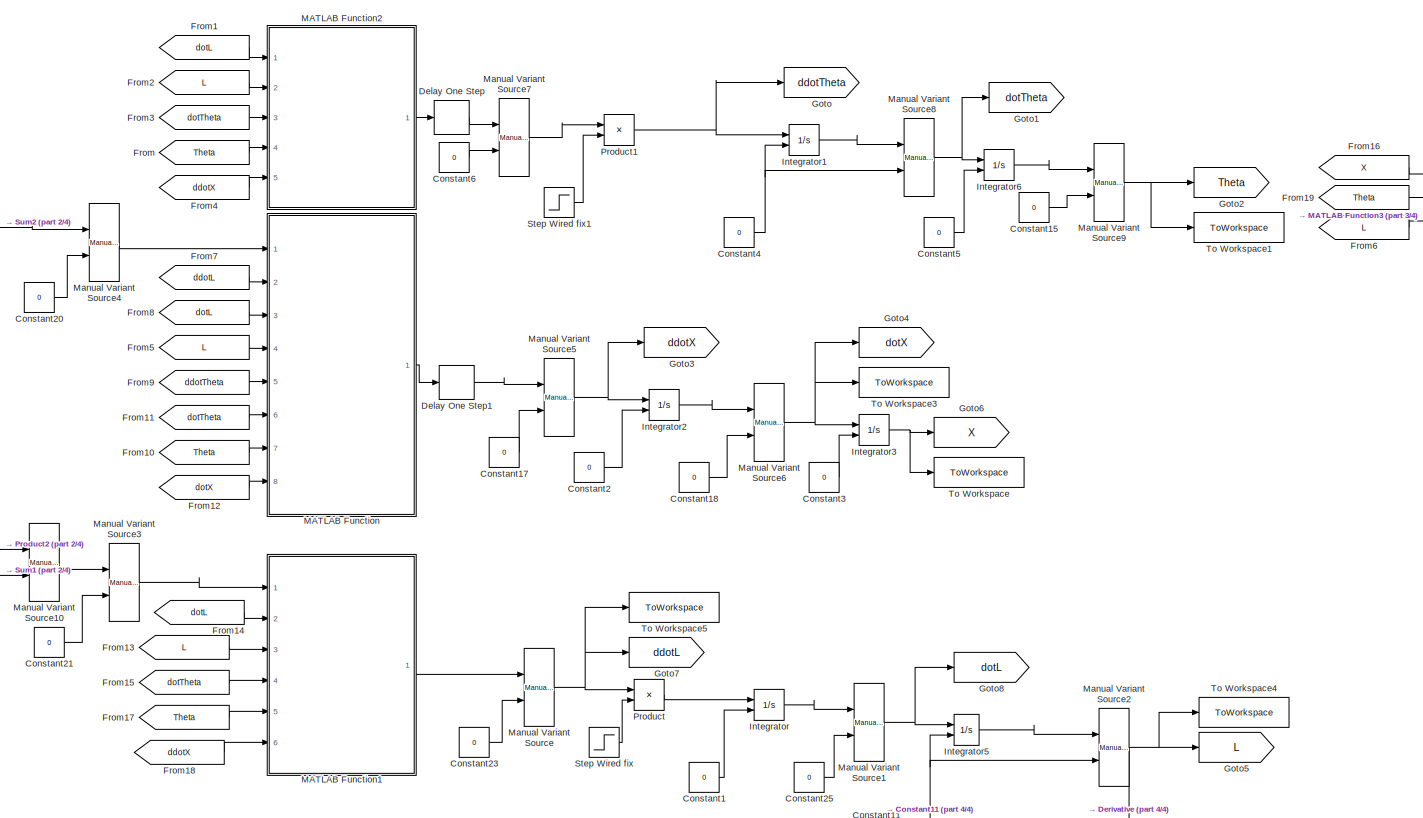
[diagram: root canvas - part 1/4, center side, full height]
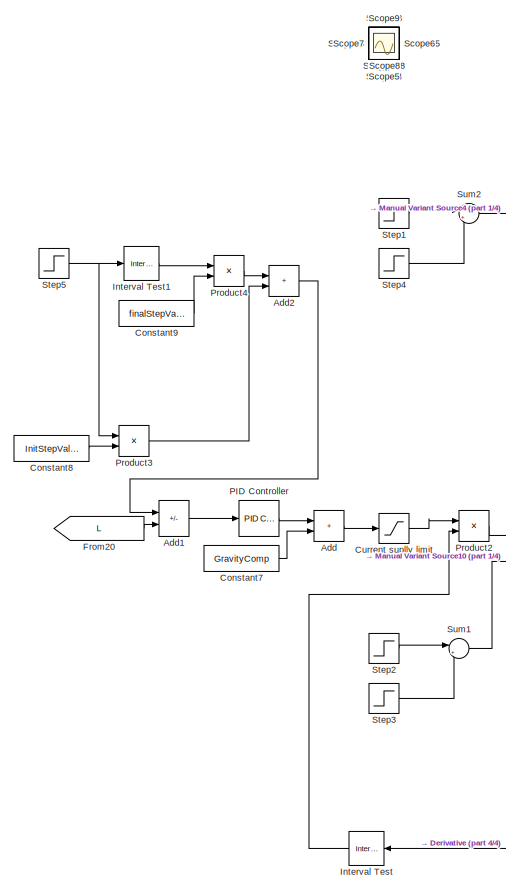
[diagram: root canvas - part 2/4, left side, full height]
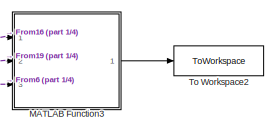
[diagram: root canvas - part 3/4, top right region]
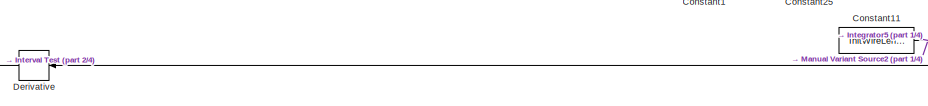
[diagram: root canvas - part 4/4, bottom center region]
MODEL slx_53948951d9bb
KIND model
CONFIG AbsTol = auto
CONFIG EnableMultiTasking = off
CONFIG FixedStep = auto
CONFIG MaxStep = 0.00005
CONFIG MinStep = auto
CONFIG RelTol = 1e-3
CONFIG SampleTimeConstraint = Unconstrained
CONFIG SolverName = VariableStepAuto
CONFIG StartTime = 0.0
CONFIG StopTime = 10
BLOCK [Sum] Add
  IconShape = rectangular
  Ports = [2, 1]
BLOCK [Sum] Add1
  IconShape = rectangular
  Inputs = +-
  Ports = [2, 1]
BLOCK [Sum] Add2
  IconShape = rectangular
  Ports = [2, 1]
BLOCK [Constant] Constant1
  Value = 0
BLOCK [Constant] Constant11
  Value = InitWireLength
BLOCK [Constant] Constant15
  Value = 0
BLOCK [Constant] Constant17
  Value = 0
BLOCK [Constant] Constant18
  Value = 0
BLOCK [Constant] Constant2
  Value = 0
BLOCK [Constant] Constant20
  Value = 0
BLOCK [Constant] Constant21
  Value = 0
BLOCK [Constant] Constant23
  Value = 0
BLOCK [Constant] Constant25
  Value = 0
BLOCK [Constant] Constant3
  Value = 0
BLOCK [Constant] Constant4
  Value = 0
BLOCK [Constant] Constant5
  Value = 0
BLOCK [Constant] Constant6
  Value = 0
BLOCK [Constant] Constant7
  Value = GravityComp
BLOCK [Constant] Constant8
  Value = InitStepValue
BLOCK [Constant] Constant9
  Value = finalStepValue
BLOCK [Saturate] Current suplly limit
  LowerLimit = -10
  UpperLimit = 10
BLOCK [Delay] Delay One Step
  DelayLength = 1
  InputPortMap = u0
  Ports = [1, 1]
BLOCK [Delay] Delay One Step1
  DelayLength = 1
  InputPortMap = u0
  Ports = [1, 1]
BLOCK [Derivative] Derivative
  NameLocation = top
BLOCK [From] From
  GotoTag = Theta
BLOCK [From] From1
  GotoTag = dotL
BLOCK [From] From10
  GotoTag = Theta
BLOCK [From] From11
  GotoTag = dotTheta
BLOCK [From] From12
  GotoTag = dotX
BLOCK [From] From13
  GotoTag = L
BLOCK [From] From14
  GotoTag = dotL
BLOCK [From] From15
  GotoTag = dotTheta
BLOCK [From] From16
  GotoTag = X
BLOCK [From] From17
  GotoTag = Theta
BLOCK [From] From18
  GotoTag = ddotX
BLOCK [From] From19
  GotoTag = Theta
BLOCK [From] From2
  GotoTag = L
BLOCK [From] From20
  GotoTag = L
BLOCK [From] From3
  GotoTag = dotTheta
BLOCK [From] From4
  GotoTag = ddotX
BLOCK [From] From5
  GotoTag = L
BLOCK [From] From6
  GotoTag = L
BLOCK [From] From7
  GotoTag = ddotL
BLOCK [From] From8
  GotoTag = dotL
BLOCK [From] From9
  GotoTag = ddotTheta
BLOCK [Goto] Goto
  GotoTag = ddotTheta
BLOCK [Goto] Goto1
  GotoTag = dotTheta
BLOCK [Goto] Goto2
  GotoTag = Theta
BLOCK [Goto] Goto3
  GotoTag = ddotX
BLOCK [Goto] Goto4
  GotoTag = dotX
BLOCK [Goto] Goto5
  GotoTag = L
BLOCK [Goto] Goto6
  GotoTag = X
BLOCK [Goto] Goto7
  GotoTag = ddotL
BLOCK [Goto] Goto8
  GotoTag = dotL
BLOCK [Integrator] Integrator
  InitialConditionSource = external
  Ports = [2, 1]
BLOCK [Integrator] Integrator1
  InitialConditionSource = external
  Ports = [2, 1]
BLOCK [Integrator] Integrator2
  InitialConditionSource = external
  Ports = [2, 1]
BLOCK [Integrator] Integrator3
  InitialConditionSource = external
  Ports = [2, 1]
BLOCK [Integrator] Integrator5
  InitialConditionSource = external
  Ports = [2, 1]
BLOCK [Integrator] Integrator6
  InitialConditionSource = external
  Ports = [2, 1]
BLOCK [Reference] Interval Test  REF=simulink/Logic and Bit
Operations/Interval Test
  NameLocation = top
  Ports = [1, 1]
  SourceBlock = simulink/Logic and Bit\nOperations/Interval Test
  SourceProductBaseCode = SL
  SourceType = Interval Test
BLOCK [Reference] Interval Test1  REF=simulink/Logic and Bit
Operations/Interval Test
  Ports = [1, 1]
  SourceBlock = simulink/Logic and Bit\nOperations/Interval Test
  SourceProductBaseCode = SL
  SourceType = Interval Test
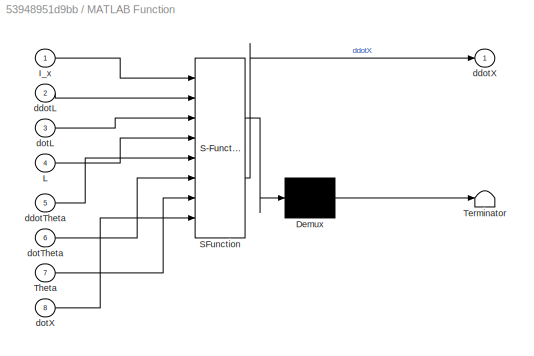
BLOCK [SubSystem] MATLAB Function
  ErrorFcn = Stateflow.Translate.translate
  PermitHierarchicalResolution = ExplicitOnly
  Ports = [8, 1]
  RequestExecContextInheritance = off
  SFBlockType = MATLAB Function
  TreatAsAtomicUnit = on
BLOCK [Demux] MATLAB Function/ Demux 
  Outputs = 1
  Ports = [1, 1]
BLOCK [S-Function] MATLAB Function/ SFunction 
  EnableBusSupport = on
  FunctionName = sf_sfun
  Parameters = B_x,J_x,cFrictionX,k_ex,m_l,m_t,r_x,sFrictionX
  PortCounts = [8 2]
  Ports = [8, 2]
  SFcnIsStateOwnerBlock = off
  SFunctionDeploymentMode = off
  Tag = Stateflow S-Function 2
BLOCK [Terminator] MATLAB Function/ Terminator 
BLOCK [Inport] MATLAB Function/I_x
BLOCK [Inport] MATLAB Function/L
  Port = 4
BLOCK [Inport] MATLAB Function/Theta
  Port = 7
BLOCK [Inport] MATLAB Function/ddotL
  Port = 2
BLOCK [Inport] MATLAB Function/ddotTheta
  Port = 5
BLOCK [Outport] MATLAB Function/ddotX
BLOCK [Inport] MATLAB Function/dotL
  Port = 3
BLOCK [Inport] MATLAB Function/dotTheta
  Port = 6
BLOCK [Inport] MATLAB Function/dotX
  Port = 8
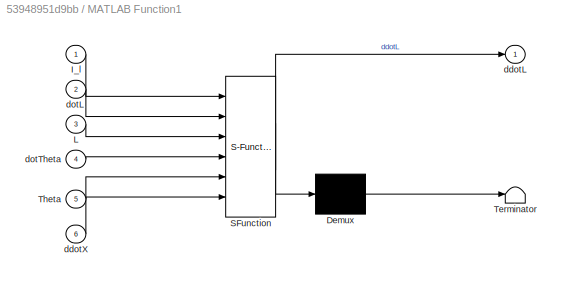
BLOCK [SubSystem] MATLAB Function1
  ErrorFcn = Stateflow.Translate.translate
  PermitHierarchicalResolution = ExplicitOnly
  Ports = [6, 1]
  RequestExecContextInheritance = off
  SFBlockType = MATLAB Function
  TreatAsAtomicUnit = on
BLOCK [Demux] MATLAB Function1/ Demux 
  Outputs = 1
  Ports = [1, 1]
BLOCK [S-Function] MATLAB Function1/ SFunction 
  EnableBusSupport = on
  FunctionName = sf_sfun
  Parameters = B_l,J_l,cFrictionL,g,k_el,m_l,r_l,sFrictionL
  PortCounts = [6 2]
  Ports = [6, 2]
  SFcnIsStateOwnerBlock = off
  SFunctionDeploymentMode = off
  Tag = Stateflow S-Function 1
BLOCK [Terminator] MATLAB Function1/ Terminator 
BLOCK [Inport] MATLAB Function1/I_l
BLOCK [Inport] MATLAB Function1/L
  Port = 3
BLOCK [Inport] MATLAB Function1/Theta
  Port = 5
BLOCK [Outport] MATLAB Function1/ddotL
BLOCK [Inport] MATLAB Function1/ddotX
  Port = 6
BLOCK [Inport] MATLAB Function1/dotL
  Port = 2
BLOCK [Inport] MATLAB Function1/dotTheta
  Port = 4
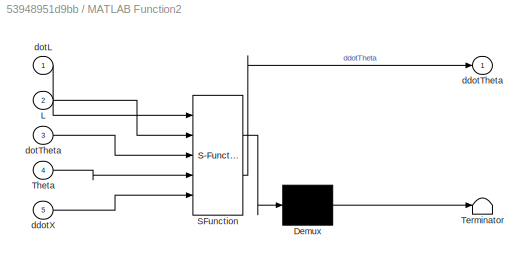
BLOCK [SubSystem] MATLAB Function2
  ErrorFcn = Stateflow.Translate.translate
  PermitHierarchicalResolution = ExplicitOnly
  Ports = [5, 1]
  RequestExecContextInheritance = off
  SFBlockType = MATLAB Function
  TreatAsAtomicUnit = on
BLOCK [Demux] MATLAB Function2/ Demux 
  Outputs = 1
  Ports = [1, 1]
BLOCK [S-Function] MATLAB Function2/ SFunction 
  EnableBusSupport = on
  FunctionName = sf_sfun
  Parameters = g
  PortCounts = [5 2]
  Ports = [5, 2]
  SFcnIsStateOwnerBlock = off
  SFunctionDeploymentMode = off
  Tag = Stateflow S-Function 3
BLOCK [Terminator] MATLAB Function2/ Terminator 
BLOCK [Inport] MATLAB Function2/L
  Port = 2
BLOCK [Inport] MATLAB Function2/Theta
  Port = 4
BLOCK [Outport] MATLAB Function2/ddotTheta
BLOCK [Inport] MATLAB Function2/ddotX
  Port = 5
BLOCK [Inport] MATLAB Function2/dotL
BLOCK [Inport] MATLAB Function2/dotTheta
  Port = 3
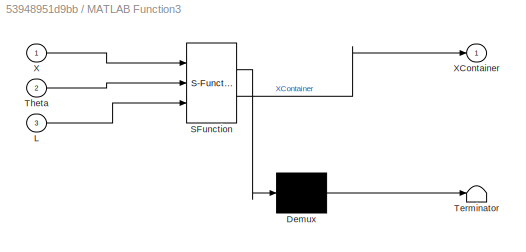
BLOCK [SubSystem] MATLAB Function3
  ErrorFcn = Stateflow.Translate.translate
  PermitHierarchicalResolution = ExplicitOnly
  Ports = [3, 1]
  RequestExecContextInheritance = off
  SFBlockType = MATLAB Function
  TreatAsAtomicUnit = on
BLOCK [Demux] MATLAB Function3/ Demux 
  Outputs = 1
  Ports = [1, 1]
BLOCK [S-Function] MATLAB Function3/ SFunction 
  EnableBusSupport = on
  FunctionName = sf_sfun
  PortCounts = [3 2]
  Ports = [3, 2]
  SFcnIsStateOwnerBlock = off
  SFunctionDeploymentMode = off
  Tag = Stateflow S-Function 4
BLOCK [Terminator] MATLAB Function3/ Terminator 
BLOCK [Inport] MATLAB Function3/L
  Port = 3
BLOCK [Inport] MATLAB Function3/Theta
  Port = 2
BLOCK [Inport] MATLAB Function3/X
BLOCK [Outport] MATLAB Function3/XContainer
BLOCK [Reference] Manual Variant Source  REF=simulink/Signal
Routing/Manual
Variant Source
  Ports = [2, 1]
  SourceBlock = simulink/Signal\nRouting/Manual\nVariant Source
  SourceProductBaseCode = SL
  SourceType = ManualVariantSource
BLOCK [Reference] Manual Variant Source1  REF=simulink/Signal
Routing/Manual
Variant Source
  Ports = [2, 1]
  SourceBlock = simulink/Signal\nRouting/Manual\nVariant Source
  SourceProductBaseCode = SL
  SourceType = ManualVariantSource
BLOCK [Reference] Manual Variant Source10  REF=simulink/Signal
Routing/Manual
Variant Source
  NameLocation = right
  Ports = [2, 1]
  SourceBlock = simulink/Signal\nRouting/Manual\nVariant Source
  SourceProductBaseCode = SL
  SourceType = ManualVariantSource
BLOCK [Reference] Manual Variant Source2  REF=simulink/Signal
Routing/Manual
Variant Source
  Ports = [2, 1]
  SourceBlock = simulink/Signal\nRouting/Manual\nVariant Source
  SourceProductBaseCode = SL
  SourceType = ManualVariantSource
BLOCK [Reference] Manual Variant Source3  REF=simulink/Signal
Routing/Manual
Variant Source
  Ports = [2, 1]
  SourceBlock = simulink/Signal\nRouting/Manual\nVariant Source
  SourceProductBaseCode = SL
  SourceType = ManualVariantSource
BLOCK [Reference] Manual Variant Source4  REF=simulink/Signal
Routing/Manual
Variant Source
  Ports = [2, 1]
  SourceBlock = simulink/Signal\nRouting/Manual\nVariant Source
  SourceProductBaseCode = SL
  SourceType = ManualVariantSource
BLOCK [Reference] Manual Variant Source5  REF=simulink/Signal
Routing/Manual
Variant Source
  Ports = [2, 1]
  SourceBlock = simulink/Signal\nRouting/Manual\nVariant Source
  SourceProductBaseCode = SL
  SourceType = ManualVariantSource
BLOCK [Reference] Manual Variant Source6  REF=simulink/Signal
Routing/Manual
Variant Source
  Ports = [2, 1]
  SourceBlock = simulink/Signal\nRouting/Manual\nVariant Source
  SourceProductBaseCode = SL
  SourceType = ManualVariantSource
BLOCK [Reference] Manual Variant Source7  REF=simulink/Signal
Routing/Manual
Variant Source
  Ports = [2, 1]
  SourceBlock = simulink/Signal\nRouting/Manual\nVariant Source
  SourceProductBaseCode = SL
  SourceType = ManualVariantSource
BLOCK [Reference] Manual Variant Source8  REF=simulink/Signal
Routing/Manual
Variant Source
  Ports = [2, 1]
  SourceBlock = simulink/Signal\nRouting/Manual\nVariant Source
  SourceProductBaseCode = SL
  SourceType = ManualVariantSource
BLOCK [Reference] Manual Variant Source9  REF=simulink/Signal
Routing/Manual
Variant Source
  Ports = [2, 1]
  SourceBlock = simulink/Signal\nRouting/Manual\nVariant Source
  SourceProductBaseCode = SL
  SourceType = ManualVariantSource
BLOCK [Reference] PID Controller  REF=slpidlib/PID Controller
  Ports = [1, 1]
  SourceBlock = slpidlib/PID Controller
  SourceProductBaseCode = SL
  SourceType = PID 1dof
BLOCK [Product] Product
  Ports = [2, 1]
BLOCK [Product] Product1
  Ports = [2, 1]
BLOCK [Product] Product2
  Ports = [2, 1]
BLOCK [Product] Product3
  Ports = [2, 1]
BLOCK [Product] Product4
  Ports = [2, 1]
BLOCK [Scope] Scope
  Floating = off
  IOType = viewer
  NumInputPorts = 1
  Ports = []
  ScopeSpecificationString = Simulink.scopes.TimeScopeBlockCfg('CurrentConfiguration', extmgr.ConfigurationSet(extmgr.Configuration('Core','General UI',true),extmgr.Configuration('Core','Source UI',true),extmgr.Configuration('Sources','WiredSimulink',true),extmgr.Configuration('Visuals','Time Domain',true,'SerializedDisplays',{struct('MinYLimReal','0.4','MaxYLimReal','0.6','YLabelReal','','MinYLimMag','0.4','MaxYLimMag','0.6'...<+1350ch>
BLOCK [Scope] Scope1
  Floating = off
  IOType = viewer
  NumInputPorts = 1
  Ports = []
  ScopeSpecificationString = Simulink.scopes.TimeScopeBlockCfg('CurrentConfiguration', extmgr.ConfigurationSet(extmgr.Configuration('Core','General UI',true),extmgr.Configuration('Core','Source UI',true),extmgr.Configuration('Sources','WiredSimulink',true,'DataLoggingVariableName','ScopeData1'),extmgr.Configuration('Visuals','Time Domain',true,'SerializedDisplays',{struct('MinYLimReal','-2.23172','MaxYLimReal','0.24797','YLab...<+1389ch>
BLOCK [Scope] Scope10
  Floating = off
  IOType = viewer
  NumInputPorts = 1
  Ports = []
  ScopeSpecificationString = Simulink.scopes.TimeScopeBlockCfg('CurrentConfiguration', extmgr.ConfigurationSet(extmgr.Configuration('Core','General UI',true),extmgr.Configuration('Core','Source UI',true),extmgr.Configuration('Sources','WiredSimulink',true,'DataLoggingVariableName','ScopeData4'),extmgr.Configuration('Visuals','Time Domain',true,'SerializedDisplays',{struct('MinYLimReal','-184.95351','MaxYLimReal','45.98461','Y...<+1400ch>
BLOCK [Scope] Scope11
  Floating = off
  IOType = viewer
  NumInputPorts = 1
  Ports = []
  ScopeSpecificationString = Simulink.scopes.TimeScopeBlockCfg('CurrentConfiguration', extmgr.ConfigurationSet(extmgr.Configuration('Core','General UI',true),extmgr.Configuration('Core','Source UI',true),extmgr.Configuration('Sources','WiredSimulink',true,'DataLoggingVariableName','ScopeData5'),extmgr.Configuration('Visuals','Time Domain',true,'SerializedDisplays',{struct('MinYLimReal','-0.602','MaxYLimReal','5.41798','YLabel...<+1384ch>
BLOCK [Scope] Scope12
  Floating = off
  IOType = viewer
  NumInputPorts = 1
  Ports = []
  ScopeSpecificationString = Simulink.scopes.TimeScopeBlockCfg('CurrentConfiguration', extmgr.ConfigurationSet(extmgr.Configuration('Core','General UI',true),extmgr.Configuration('Core','Source UI',true),extmgr.Configuration('Sources','WiredSimulink',true,'DataLoggingVariableName','ScopeData6'),extmgr.Configuration('Visuals','Time Domain',true,'SerializedDisplays',{struct('MinYLimReal','-3.375','MaxYLimReal','0.375','YLabelRe...<+1412ch>
BLOCK [Scope] Scope13
  Floating = off
  IOType = viewer
  NumInputPorts = 1
  Ports = []
  ScopeSpecificationString = Simulink.scopes.TimeScopeBlockCfg('CurrentConfiguration', extmgr.ConfigurationSet(extmgr.Configuration('Core','General UI',true),extmgr.Configuration('Core','Source UI',true),extmgr.Configuration('Sources','WiredSimulink',true,'DataLoggingVariableName','ScopeData7'),extmgr.Configuration('Visuals','Time Domain',true,'SerializedDisplays',{struct('MinYLimReal','-0.90997','MaxYLimReal','0.89885','YLab...<+1402ch>
BLOCK [Scope] Scope14
  Floating = off
  IOType = viewer
  NumInputPorts = 1
  Ports = []
  ScopeSpecificationString = Simulink.scopes.TimeScopeBlockCfg('CurrentConfiguration', extmgr.ConfigurationSet(extmgr.Configuration('Core','General UI',true),extmgr.Configuration('Core','Source UI',true),extmgr.Configuration('Sources','WiredSimulink',true,'DataLoggingVariableName','ScopeData1'),extmgr.Configuration('Visuals','Time Domain',true),extmgr.Configuration('Tools','Plot Navigation',true),extmgr.Configuration('Tools',...<+58ch>
BLOCK [Scope] Scope15
  Floating = off
  IOType = viewer
  NumInputPorts = 1
  Ports = []
  ScopeSpecificationString = Simulink.scopes.TimeScopeBlockCfg('CurrentConfiguration', extmgr.ConfigurationSet(extmgr.Configuration('Core','General UI',true),extmgr.Configuration('Core','Source UI',true),extmgr.Configuration('Sources','WiredSimulink',true,'DataLoggingVariableName','ScopeData1'),extmgr.Configuration('Visuals','Time Domain',true,'SerializedDisplays',{struct('MinYLimReal','-0.01255','MaxYLimReal','1.11291','YLab...<+1452ch>
BLOCK [Scope] Scope16
  Floating = off
  IOType = viewer
  NumInputPorts = 1
  Ports = []
  ScopeSpecificationString = Simulink.scopes.TimeScopeBlockCfg('CurrentConfiguration', extmgr.ConfigurationSet(extmgr.Configuration('Core','General UI',true),extmgr.Configuration('Core','Source UI',true),extmgr.Configuration('Sources','WiredSimulink',true,'DataLoggingVariableName','ScopeData2'),extmgr.Configuration('Visuals','Time Domain',true,'SerializedDisplays',{struct('MinYLimReal','-1.33952','MaxYLimReal','0.16174','YLab...<+1392ch>
BLOCK [Scope] Scope17
  Floating = off
  IOType = viewer
  NumInputPorts = 1
  Ports = []
  ScopeSpecificationString = Simulink.scopes.TimeScopeBlockCfg('CurrentConfiguration', extmgr.ConfigurationSet(extmgr.Configuration('Core','General UI',true),extmgr.Configuration('Core','Source UI',true),extmgr.Configuration('Sources','WiredSimulink',true,'DataLoggingVariableName','ScopeData3'),extmgr.Configuration('Visuals','Time Domain',true,'SerializedDisplays',{struct('MinYLimReal','-10329.9244','MaxYLimReal','1152.98177'...<+1415ch>
BLOCK [Scope] Scope18
  Floating = off
  IOType = viewer
  NumInputPorts = 1
  Ports = []
  ScopeSpecificationString = Simulink.scopes.TimeScopeBlockCfg('CurrentConfiguration', extmgr.ConfigurationSet(extmgr.Configuration('Core','General UI',true),extmgr.Configuration('Core','Source UI',true),extmgr.Configuration('Sources','WiredSimulink',true,'DataLoggingVariableName','ScopeData4'),extmgr.Configuration('Visuals','Time Domain',true,'SerializedDisplays',{struct('MinYLimReal','-11.83639','MaxYLimReal','6.52755','YLa...<+1412ch>
BLOCK [Scope] Scope19
  Floating = off
  IOType = viewer
  NumInputPorts = 1
  Ports = []
  ScopeSpecificationString = Simulink.scopes.TimeScopeBlockCfg('CurrentConfiguration', extmgr.ConfigurationSet(extmgr.Configuration('Core','General UI',true),extmgr.Configuration('Core','Source UI',true),extmgr.Configuration('Sources','WiredSimulink',true,'DataLoggingVariableName','ScopeData5'),extmgr.Configuration('Visuals','Time Domain',true,'SerializedDisplays',{struct('MinYLimReal','-1.00000','MaxYLimReal','1.00000','YLab...<+1416ch>
BLOCK [Scope] Scope2
  Floating = off
  IOType = viewer
  NumInputPorts = 1
  Ports = []
  ScopeSpecificationString = Simulink.scopes.TimeScopeBlockCfg('CurrentConfiguration', extmgr.ConfigurationSet(extmgr.Configuration('Core','General UI',true),extmgr.Configuration('Core','Source UI',true),extmgr.Configuration('Sources','WiredSimulink',true,'DataLoggingVariableName','ScopeData1'),extmgr.Configuration('Visuals','Time Domain',true,'SerializedDisplays',{struct('MinYLimReal','-0.875','MaxYLimReal','7.875','YLabelRe...<+1376ch>
BLOCK [Scope] Scope20
  Floating = off
  IOType = viewer
  NumInputPorts = 1
  Ports = []
  ScopeSpecificationString = Simulink.scopes.TimeScopeBlockCfg('CurrentConfiguration', extmgr.ConfigurationSet(extmgr.Configuration('Core','General UI',true),extmgr.Configuration('Core','Source UI',true),extmgr.Configuration('Sources','WiredSimulink',true,'DataLoggingVariableName','ScopeData6'),extmgr.Configuration('Visuals','Time Domain',true,'SerializedDisplays',{struct('MinYLimReal','-1.00000','MaxYLimReal','1.00000','YLab...<+1416ch>
BLOCK [Scope] Scope21
  Floating = off
  IOType = viewer
  NumInputPorts = 1
  Ports = []
  ScopeSpecificationString = Simulink.scopes.TimeScopeBlockCfg('CurrentConfiguration', extmgr.ConfigurationSet(extmgr.Configuration('Core','General UI',true),extmgr.Configuration('Core','Source UI',true),extmgr.Configuration('Sources','WiredSimulink',true,'DataLoggingVariableName','ScopeData1'),extmgr.Configuration('Visuals','Time Domain',true,'SerializedDisplays',{struct('MinYLimReal','-0.125','MaxYLimReal','1.125','YLabelRe...<+1389ch>
BLOCK [Scope] Scope22
  Floating = off
  IOType = viewer
  NumInputPorts = 1
  Ports = []
  ScopeSpecificationString = Simulink.scopes.TimeScopeBlockCfg('CurrentConfiguration', extmgr.ConfigurationSet(extmgr.Configuration('Core','General UI',true),extmgr.Configuration('Core','Source UI',true),extmgr.Configuration('Sources','WiredSimulink',true,'DataLoggingVariableName','ScopeData2'),extmgr.Configuration('Visuals','Time Domain',true,'SerializedDisplays',{struct('MinYLimReal','-0.56252','MaxYLimReal','0.0625','YLabe...<+1396ch>
BLOCK [Scope] Scope23
  Floating = off
  IOType = viewer
  NumInputPorts = 1
  Ports = []
  ScopeSpecificationString = Simulink.scopes.TimeScopeBlockCfg('CurrentConfiguration', extmgr.ConfigurationSet(extmgr.Configuration('Core','General UI',true),extmgr.Configuration('Core','Source UI',true),extmgr.Configuration('Sources','WiredSimulink',true,'DataLoggingVariableName','ScopeData1'),extmgr.Configuration('Visuals','Time Domain',true,'SerializedDisplays',{struct('MinYLimReal','-0.15','MaxYLimReal','1.35','YLabelReal...<+1345ch>
BLOCK [Scope] Scope24
  Floating = off
  IOType = viewer
  NumInputPorts = 1
  Ports = []
  ScopeSpecificationString = Simulink.scopes.TimeScopeBlockCfg('CurrentConfiguration', extmgr.ConfigurationSet(extmgr.Configuration('Core','General UI',true),extmgr.Configuration('Core','Source UI',true),extmgr.Configuration('Sources','WiredSimulink',true,'DataLoggingVariableName','ScopeData2'),extmgr.Configuration('Visuals','Time Domain',true,'SerializedDisplays',{struct('MinYLimReal','-0.125','MaxYLimReal','1.125','YLabelRe...<+1352ch>
BLOCK [Scope] Scope25
  Floating = off
  IOType = viewer
  NumInputPorts = 1
  Ports = []
  ScopeSpecificationString = Simulink.scopes.TimeScopeBlockCfg('CurrentConfiguration', extmgr.ConfigurationSet(extmgr.Configuration('Core','General UI',true),extmgr.Configuration('Core','Source UI',true),extmgr.Configuration('Sources','WiredSimulink',true,'DataLoggingVariableName','ScopeData3'),extmgr.Configuration('Visuals','Time Domain',true,'SerializedDisplays',{struct('MinYLimReal','-0.125','MaxYLimReal','1.125','YLabelRe...<+1361ch>
BLOCK [Scope] Scope26
  Floating = off
  IOType = viewer
  NumInputPorts = 1
  Ports = []
  ScopeSpecificationString = Simulink.scopes.TimeScopeBlockCfg('CurrentConfiguration', extmgr.ConfigurationSet(extmgr.Configuration('Core','General UI',true),extmgr.Configuration('Core','Source UI',true),extmgr.Configuration('Sources','WiredSimulink',true,'DataLoggingVariableName','ScopeData4'),extmgr.Configuration('Visuals','Time Domain',true,'SerializedDisplays',{struct('MinYLimReal','-0.15','MaxYLimReal','1.35','YLabelReal...<+1349ch>
BLOCK [Scope] Scope3
  Floating = off
  IOType = viewer
  NumInputPorts = 1
  Ports = []
  ScopeSpecificationString = Simulink.scopes.TimeScopeBlockCfg('CurrentConfiguration', extmgr.ConfigurationSet(extmgr.Configuration('Core','General UI',true),extmgr.Configuration('Core','Source UI',true),extmgr.Configuration('Sources','WiredSimulink',true,'DataLoggingVariableName','ScopeData2'),extmgr.Configuration('Visuals','Time Domain',true,'SerializedDisplays',{struct('MinYLimReal','-0.11816','MaxYLimReal','0.13961','YLab...<+1424ch>
BLOCK [Scope] Scope4
  Floating = off
  IOType = viewer
  NumInputPorts = 1
  Ports = []
  ScopeSpecificationString = Simulink.scopes.TimeScopeBlockCfg('CurrentConfiguration', extmgr.ConfigurationSet(extmgr.Configuration('Core','General UI',true),extmgr.Configuration('Core','Source UI',true),extmgr.Configuration('Sources','WiredSimulink',true,'DataLoggingVariableName','ScopeData3'),extmgr.Configuration('Visuals','Time Domain',true,'SerializedDisplays',{struct('MinYLimReal','-1.2203','MaxYLimReal','0.87678','YLabe...<+1390ch>
BLOCK [Scope] Scope5
  Floating = off
  IOType = viewer
  NumInputPorts = 1
  Ports = []
  ScopeSpecificationString = Simulink.scopes.TimeScopeBlockCfg('CurrentConfiguration', extmgr.ConfigurationSet(extmgr.Configuration('Core','General UI',true),extmgr.Configuration('Core','Source UI',true),extmgr.Configuration('Sources','WiredSimulink',true,'DataLoggingVariableName','ScopeData4'),extmgr.Configuration('Visuals','Time Domain',true,'SerializedDisplays',{struct('MinYLimReal','-1.12216','MaxYLimReal','0.12475','YLab...<+1359ch>
BLOCK [Scope] Scope6
  Floating = off
  IOType = viewer
  NumInputPorts = 1
  Ports = []
  ScopeSpecificationString = Simulink.scopes.TimeScopeBlockCfg('CurrentConfiguration', extmgr.ConfigurationSet(extmgr.Configuration('Core','General UI',true),extmgr.Configuration('Core','Source UI',true),extmgr.Configuration('Sources','WiredSimulink',true,'DataLoggingVariableName','ScopeData5'),extmgr.Configuration('Visuals','Time Domain',true,'SerializedDisplays',{struct('MinYLimReal','-1.00000','MaxYLimReal','1.00000','YLab...<+1359ch>
BLOCK [Scope] Scope7
  Floating = off
  IOType = viewer
  NumInputPorts = 1
  Ports = []
  ScopeSpecificationString = Simulink.scopes.TimeScopeBlockCfg('CurrentConfiguration', extmgr.ConfigurationSet(extmgr.Configuration('Core','General UI',true),extmgr.Configuration('Core','Source UI',true),extmgr.Configuration('Sources','WiredSimulink',true,'DataLoggingVariableName','ScopeData1'),extmgr.Configuration('Visuals','Time Domain',true,'SerializedDisplays',{struct('MinYLimReal','-1.00000','MaxYLimReal','1.00000','YLab...<+1423ch>
BLOCK [Scope] Scope8
  Floating = off
  IOType = viewer
  NumInputPorts = 1
  Ports = []
  ScopeSpecificationString = Simulink.scopes.TimeScopeBlockCfg('CurrentConfiguration', extmgr.ConfigurationSet(extmgr.Configuration('Core','General UI',true),extmgr.Configuration('Core','Source UI',true),extmgr.Configuration('Sources','WiredSimulink',true,'DataLoggingVariableName','ScopeData2'),extmgr.Configuration('Visuals','Time Domain',true,'SerializedDisplays',{struct('MinYLimReal','-1.00000','MaxYLimReal','1.00000','YLab...<+1394ch>
BLOCK [Scope] Scope9
  Floating = off
  IOType = viewer
  NumInputPorts = 1
  Ports = []
  ScopeSpecificationString = Simulink.scopes.TimeScopeBlockCfg('CurrentConfiguration', extmgr.ConfigurationSet(extmgr.Configuration('Core','General UI',true),extmgr.Configuration('Core','Source UI',true),extmgr.Configuration('Sources','WiredSimulink',true,'DataLoggingVariableName','ScopeData3'),extmgr.Configuration('Visuals','Time Domain',true,'SerializedDisplays',{struct('MinYLimReal','-74.97692','MaxYLimReal','63.88632','YL...<+1393ch>
BLOCK [Step] Step Wired fix
  SampleTime = 0
  Time = 0.0001
BLOCK [Step] Step Wired fix1
  SampleTime = 0
  Time = 0.001
BLOCK [Step] Step1
  After = I_xCurrent
  SampleTime = 0
  Time = I_xStart
BLOCK [Step] Step2
  After = I_LCurrent
  SampleTime = 0
  Time = I_LStart
BLOCK [Step] Step3
  After = I_LCurrent
  SampleTime = 0
  Time = I_LEnd
BLOCK [Step] Step4
  After = I_xCurrent
  SampleTime = 0
  Time = I_xEnd
BLOCK [Step] Step5
  After = 0
  Before = 1
  SampleTime = 0
BLOCK [Sum] Sum1
  Inputs = |+-
  Ports = [2, 1]
BLOCK [Sum] Sum2
  Inputs = |+-
  Ports = [2, 1]
BLOCK [ToWorkspace] To Workspace
  FixptAsFi = on
  MaxDataPoints = inf
  Ports = [1]
  SampleTime = -1
  VariableName = X
BLOCK [ToWorkspace] To Workspace1
  FixptAsFi = on
  MaxDataPoints = inf
  Ports = [1]
  SampleTime = -1
  VariableName = Theta
BLOCK [ToWorkspace] To Workspace2
  FixptAsFi = on
  MaxDataPoints = inf
  Ports = [1]
  SampleTime = -1
  VariableName = XContainer
BLOCK [ToWorkspace] To Workspace3
  FixptAsFi = on
  MaxDataPoints = inf
  Ports = [1]
  SampleTime = -1
  VariableName = dotX
BLOCK [ToWorkspace] To Workspace4
  FixptAsFi = on
  MaxDataPoints = inf
  Ports = [1]
  SampleTime = -1
  VariableName = L
BLOCK [ToWorkspace] To Workspace5
  FixptAsFi = on
  MaxDataPoints = inf
  Ports = [1]
  SampleTime = -1
  VariableName = ddotL
LINE Add1:1 -> PID Controller:1
LINE Add2:1 -> Add1:1
LINE Add:1 -> Current suplly limit:1
NET Constant11:1 -> Integrator5:2, Manual Variant Source2:2
LINE Constant15:1 -> Manual Variant Source9:2
LINE Constant17:1 -> Manual Variant Source5:2
LINE Constant18:1 -> Manual Variant Source6:2
LINE Constant1:1 -> Integrator:2
LINE Constant20:1 -> Manual Variant Source4:2
LINE Constant21:1 -> Manual Variant Source3:2
LINE Constant23:1 -> Manual Variant Source:2
LINE Constant25:1 -> Manual Variant Source1:2
LINE Constant2:1 -> Integrator2:2
LINE Constant3:1 -> Integrator3:2
NET Constant4:1 -> Integrator1:2, Manual Variant Source8:2
LINE Constant5:1 -> Integrator6:2
LINE Constant6:1 -> Manual Variant Source7:2
LINE Constant7:1 -> Add:2
LINE Constant8:1 -> Product3:2
LINE Constant9:1 -> Product4:2
LINE Current suplly limit:1 -> Product2:1
LINE Delay One Step1:1 -> Manual Variant Source5:1
LINE Delay One Step:1 -> Manual Variant Source7:1
LINE Derivative:1 -> Interval Test:1
LINE From10:1 -> MATLAB Function:7
LINE From11:1 -> MATLAB Function:6
LINE From12:1 -> MATLAB Function:8
LINE From13:1 -> MATLAB Function1:3
LINE From14:1 -> MATLAB Function1:2
LINE From15:1 -> MATLAB Function1:4
LINE From16:1 -> MATLAB Function3:1
LINE From17:1 -> MATLAB Function1:5
LINE From18:1 -> MATLAB Function1:6
LINE From19:1 -> MATLAB Function3:2
LINE From1:1 -> MATLAB Function2:1
LINE From20:1 -> Add1:2
LINE From2:1 -> MATLAB Function2:2
LINE From3:1 -> MATLAB Function2:3
LINE From4:1 -> MATLAB Function2:5
LINE From5:1 -> MATLAB Function:4
LINE From6:1 -> MATLAB Function3:3
LINE From7:1 -> MATLAB Function:2
LINE From8:1 -> MATLAB Function:3
LINE From9:1 -> MATLAB Function:5
LINE From:1 -> MATLAB Function2:4
LINE Integrator1:1 -> Manual Variant Source8:1
LINE Integrator2:1 -> Manual Variant Source6:1
NET Integrator3:1 -> Goto6:1, To Workspace:1
LINE Integrator5:1 -> Manual Variant Source2:1
LINE Integrator6:1 -> Manual Variant Source9:1
LINE Integrator:1 -> Manual Variant Source1:1
LINE Interval Test1:1 -> Product4:1
LINE Interval Test:1 -> Product2:2
LINE MATLAB Function1:1 -> Manual Variant Source:1
LINE MATLAB Function2:1 -> Delay One Step:1
LINE MATLAB Function3:1 -> To Workspace2:1
LINE MATLAB Function:1 -> Delay One Step1:1
LINE Manual Variant Source10:1 -> Manual Variant Source3:1
NET Manual Variant Source1:1 -> Goto8:1, Integrator5:1
NET Manual Variant Source2:1 -> Derivative:1, Goto5:1, To Workspace4:1
LINE Manual Variant Source3:1 -> MATLAB Function1:1
LINE Manual Variant Source4:1 -> MATLAB Function:1
NET Manual Variant Source5:1 -> Goto3:1, Integrator2:1
NET Manual Variant Source6:1 -> Goto4:1, Integrator3:1, To Workspace3:1
LINE Manual Variant Source7:1 -> Product1:1
NET Manual Variant Source8:1 -> Goto1:1, Integrator6:1
NET Manual Variant Source9:1 -> Goto2:1, To Workspace1:1
NET Manual Variant Source:1 -> Goto7:1, Product:1, To Workspace5:1
LINE PID Controller:1 -> Add:1
NET Product1:1 -> Goto:1, Integrator1:1
LINE Product2:1 -> Manual Variant Source10:1
LINE Product3:1 -> Add2:2
LINE Product4:1 -> Add2:1
LINE Product:1 -> Integrator:1
LINE Step Wired fix1:1 -> Product1:2
LINE Step Wired fix:1 -> Product:2
LINE Step1:1 -> Sum2:1
LINE Step2:1 -> Sum1:1
LINE Step3:1 -> Sum1:2
LINE Step4:1 -> Sum2:2
NET Step5:1 -> Interval Test1:1, Product3:1
LINE Sum1:1 -> Manual Variant Source10:2
LINE Sum2:1 -> Manual Variant Source4:1
note: NET lines group one-source signal fan-out (src -> all destinations, sorted); 1:1 wires keep LINE
CHART MATLAB Function1 states=1 transitions=1
  STATE_LABEL 'eML_blk_kernel()'
  STATE_LABEL 'SCRIPT:\nfunction ddotL = fcn5_13(I_l, dotL, L, dotTheta, Theta, ddotX, k_el, r_l, J_l, m_l, g, B_l,cFrictionL, sFrictionL)\n\nif(norm(dotL)<0.05)\n    friction = sFrictionL*sign(dotL);\nelse\n    friction = B_l*dotL+cFrictionL*sign(dotL);\nend\n\n\ntemp = -m_l*ddotX*sin(Theta);\n\ntemp = temp + m_l*L*dotTheta^2;\n\ntemp = temp; + m_l*g*cos(Theta);\n\ntemp = temp -friction;\n\ntemp = temp + 2*k_el*I_l/r_l;\n\nddotL=t...<+24ch>'
CHART MATLAB Function states=1 transitions=1
  STATE_LABEL 'eML_blk_kernel()'
  STATE_LABEL 'SCRIPT:\nfunction ddotX = fcn5_10(I_x, ddotL, dotL, L, ddotTheta, dotTheta, Theta, dotX, J_x, r_x, k_ex, m_t, m_l, B_x,sFrictionX, cFrictionX)\n\nif(norm(dotX)<0.05)\n    friction = sFrictionX*sign(dotX);\nelse\n    friction = B_x*dotX+cFrictionX*sign(dotX);\nend\n\n\ntemp = I_x*k_ex/r_x;\n\ntemp = temp  - m_l*ddotL*sin(Theta);\n\ntemp= temp -2*m_l*dotL*dotTheta*cos(Theta);\n\ntemp = temp - m_l*L*ddotTheta*cos(Th...<+130ch>'
CHART MATLAB Function2 states=1 transitions=1
  STATE_LABEL 'eML_blk_kernel()'
  STATE_LABEL 'SCRIPT:\nfunction ddotTheta = fcn5_7(dotL, L, dotTheta, Theta,ddotX,g)\n\ntemp = -2*dotL*dotTheta;\n\ntemp = temp - ddotX*cos(Theta);\n\ntemp = temp - g*sin(Theta);\n\ntemp = temp/L;\n\nddotTheta = temp;\n'
CHART MATLAB Function3 states=1 transitions=1
  STATE_LABEL 'eML_blk_kernel()'
  STATE_LABEL 'SCRIPT:\nfunction XContainer = fcn(X,Theta,L)\n\nXContainer = X + sin(Theta)*L;\n\n'
CHART  states=0 transitions=0
CHART  states=0 transitions=0
CHART  states=0 transitions=0
CHART  states=0 transitions=0
